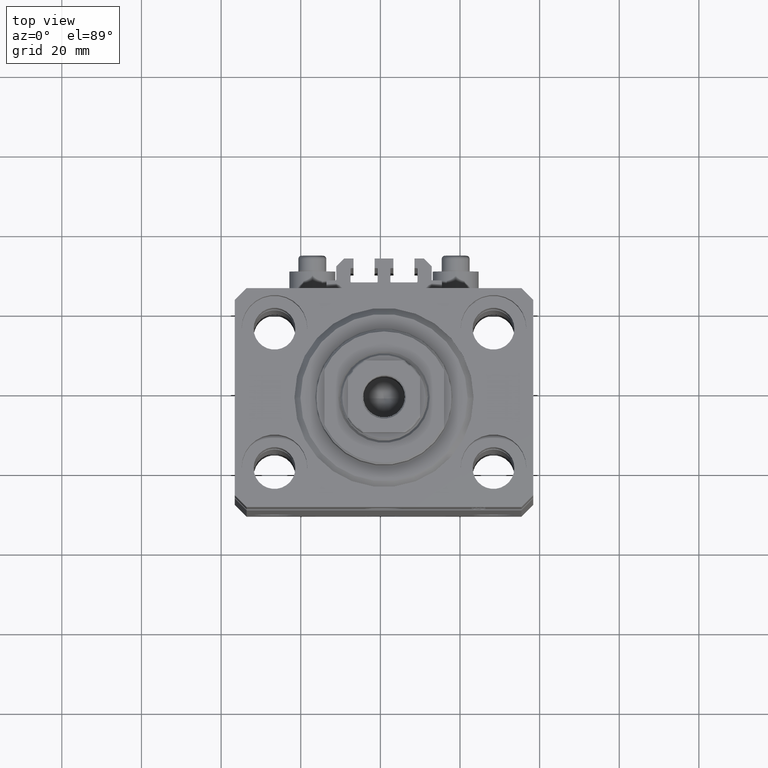
[diagram: clean part render]
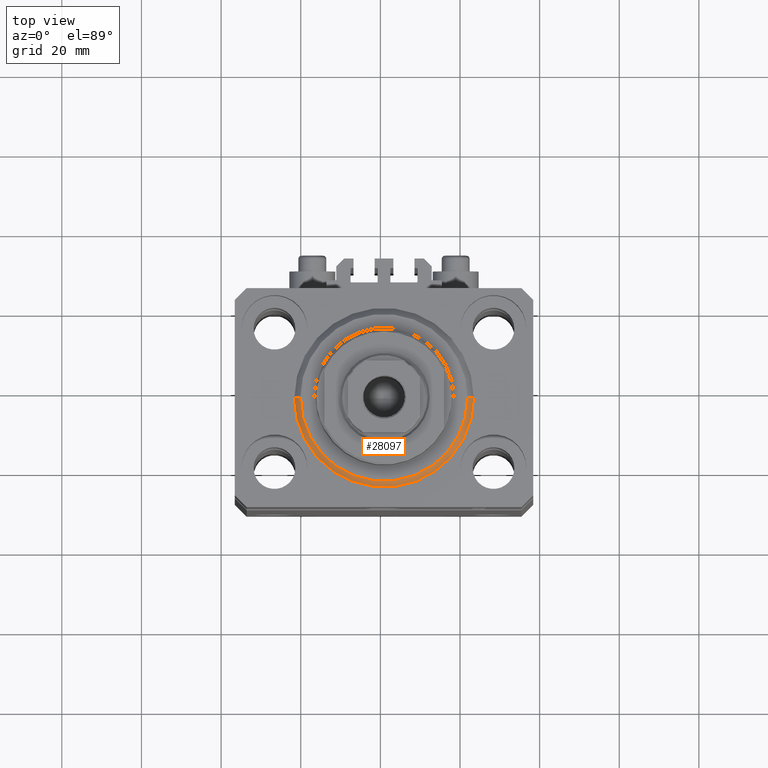
[diagram: same view with one face highlighted and labeled with its STEP entity id]
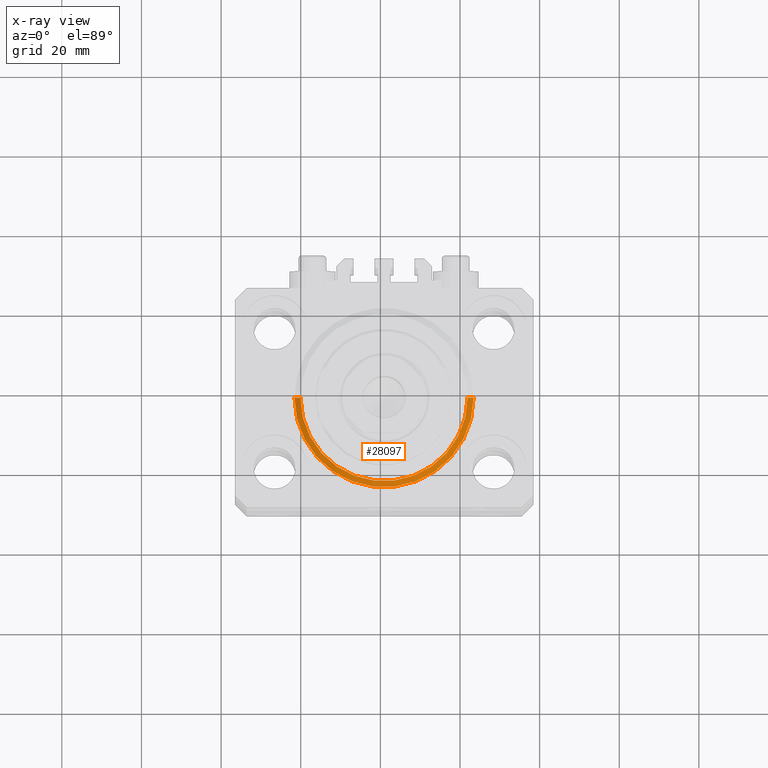
[diagram: x-ray of the same camera — body ghosted, the highlighted face saturated]
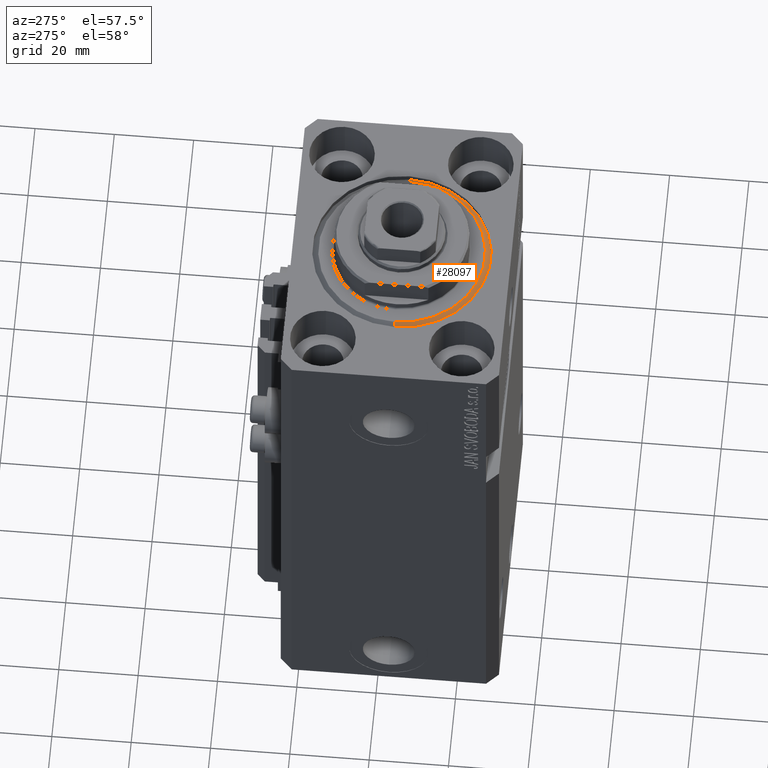
[diagram: same view with one face highlighted and labeled with its STEP entity id]
A machine part, top view. The second image highlights one B-rep face of the part: STEP entity #28097.
The next image is the same camera in x-ray: the body ghosted, the highlighted face saturated — about 0% of this face is hidden behind the body in this view.
A second angle (auxiliary view) of the same face is appended — the face is thin or edge-on in the first view.
In plain terms, the highlighted conical surface has half-angle 45 deg.
Its self-contained STEP definition (entity closure, byte-faithful):
#1493 = CARTESIAN_POINT ( 'NONE',  ( 20.99999999999998934, 0.000000000000000000, 0.000000000000000000 ) ) ;
#1748 = VECTOR ( 'NONE', #41529, 1000.000000000000114 ) ;
#2406 = DIRECTION ( 'NONE',  ( -0.000000000000000000, -0.000000000000000000, 1.000000000000000000 ) ) ;
#3841 = CONICAL_SURFACE ( 'NONE', #19774, 22.50000000000000355, 0.7853981633974517207 ) ;
#5203 = EDGE_LOOP ( 'NONE', ( #19900, #13134, #23730, #26196 ) ) ;
#5614 = AXIS2_PLACEMENT_3D ( 'NONE', #27033, #17200, #9544 ) ;
#6284 = EDGE_CURVE ( 'NONE', #46448, #39795, #11728, .T. ) ;
#6348 = EDGE_CURVE ( 'NONE', #39795, #10799, #32054, .T. ) ;
#9544 = DIRECTION ( 'NONE',  ( 1.000000000000000000, 0.000000000000000000, 0.000000000000000000 ) ) ;
#10799 = VERTEX_POINT ( 'NONE', #21914 ) ;
#11728 = CIRCLE ( 'NONE', #5614, 20.99999999999998934 ) ;
#12308 = CARTESIAN_POINT ( 'NONE',  ( 22.50000000000000355, 0.000000000000000000, 1.500000000000001332 ) ) ;
#13134 = ORIENTED_EDGE ( 'NONE', *, *, #6284, .F. ) ;
#14121 = FACE_OUTER_BOUND ( 'NONE', #5203, .T. ) ;
#17200 = DIRECTION ( 'NONE',  ( -0.000000000000000000, -0.000000000000000000, -1.000000000000000000 ) ) ;
#18571 = CIRCLE ( 'NONE', #36191, 22.50000000000000355 ) ;
#19774 = AXIS2_PLACEMENT_3D ( 'NONE', #43116, #38791, #35692 ) ;
#19900 = ORIENTED_EDGE ( 'NONE', *, *, #6348, .F. ) ;
#21907 = VERTEX_POINT ( 'NONE', #41750 ) ;
#21914 = CARTESIAN_POINT ( 'NONE',  ( -22.50000000000000355, 0.000000000000000000, 1.500000000000001332 ) ) ;
#23730 = ORIENTED_EDGE ( 'NONE', *, *, #37311, .T. ) ;
#26196 = ORIENTED_EDGE ( 'NONE', *, *, #38552, .F. ) ;
#27033 = CARTESIAN_POINT ( 'NONE',  ( 0.000000000000000000, 0.000000000000000000, 0.000000000000000000 ) ) ;
#28097 = ADVANCED_FACE ( 'NONE', ( #14121 ), #3841, .T. ) ;
#30091 = VECTOR ( 'NONE', #38747, 1000.000000000000114 ) ;
#31379 = CARTESIAN_POINT ( 'NONE',  ( 0.000000000000000000, 0.000000000000000000, 1.500000000000001332 ) ) ;
#32054 = LINE ( 'NONE', #45948, #30091 ) ;
#33880 = LINE ( 'NONE', #12308, #1748 ) ;
#35692 = DIRECTION ( 'NONE',  ( 1.000000000000000000, 0.000000000000000000, 0.000000000000000000 ) ) ;
#36191 = AXIS2_PLACEMENT_3D ( 'NONE', #31379, #2406, #45976 ) ;
#36574 = CARTESIAN_POINT ( 'NONE',  ( -20.99999999999998934, 2.663606788145492628E-15, 0.000000000000000000 ) ) ;
#37311 = EDGE_CURVE ( 'NONE', #46448, #21907, #33880, .T. ) ;
#38552 = EDGE_CURVE ( 'NONE', #10799, #21907, #18571, .T. ) ;
#38747 = DIRECTION ( 'NONE',  ( -0.7071067811865500152, 8.659560562354963673E-17, 0.7071067811865451302 ) ) ;
#38791 = DIRECTION ( 'NONE',  ( -0.000000000000000000, -0.000000000000000000, 1.000000000000000000 ) ) ;
#39795 = VERTEX_POINT ( 'NONE', #36574 ) ;
#41529 = DIRECTION ( 'NONE',  ( 0.7071067811865500152, 0.000000000000000000, 0.7071067811865451302 ) ) ;
#41750 = CARTESIAN_POINT ( 'NONE',  ( 22.50000000000000355, 2.755455298081545172E-15, 1.500000000000001332 ) ) ;
#43116 = CARTESIAN_POINT ( 'NONE',  ( 0.000000000000000000, 0.000000000000000000, 1.500000000000001332 ) ) ;
#45948 = CARTESIAN_POINT ( 'NONE',  ( -22.50000000000000355, 2.755455298081545172E-15, 1.500000000000001332 ) ) ;
#45976 = DIRECTION ( 'NONE',  ( 1.000000000000000000, 0.000000000000000000, 0.000000000000000000 ) ) ;
#46448 = VERTEX_POINT ( 'NONE', #1493 ) ;